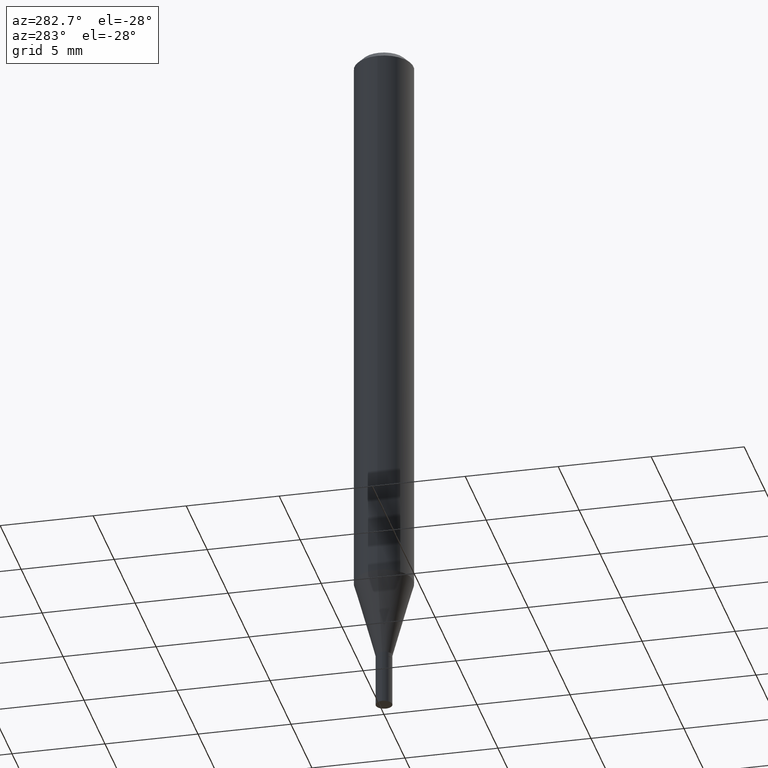
[diagram: clean part render]
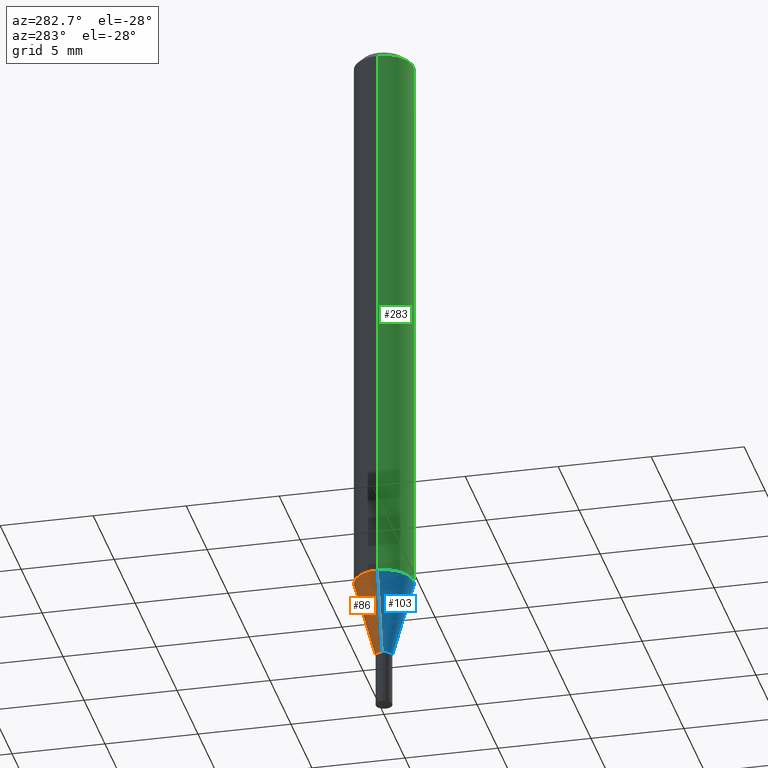
[diagram: same view with three faces highlighted in distinct colors, each labeled with its STEP entity id]
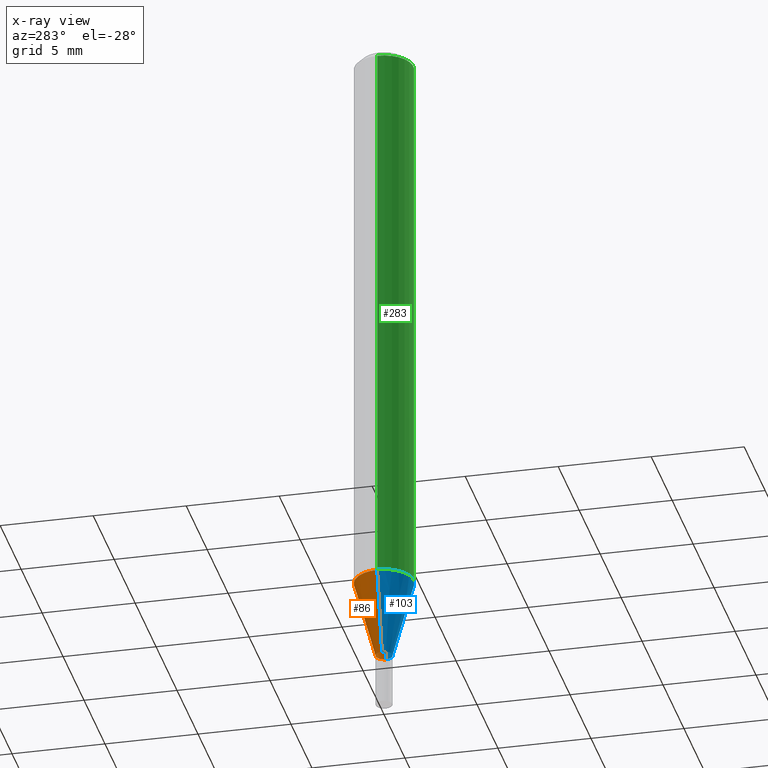
[diagram: x-ray of the same camera — body ghosted, the three highlighted faces saturated]
A machine part, auxiliary view with three faces highlighted in distinct colors.
The next image is the same camera in x-ray (body ghosted, the three faces saturated) — at least one of them is partly hidden behind the body in this view.
Their STEP definitions:

[orange] entity #86 — the highlighted conical surface has half-angle 15 deg.
#17 = LINE ( 'NONE', #413, #149 ) ;
#18 = ORIENTED_EDGE ( 'NONE', *, *, #47, .F. ) ;
#31 = AXIS2_PLACEMENT_3D ( 'NONE', #456, #276, #279 ) ;
#47 = EDGE_CURVE ( 'NONE', #292, #209, #17, .T. ) ;
#67 = EDGE_CURVE ( 'NONE', #317, #382, #308, .T. ) ;
#80 = EDGE_CURVE ( 'NONE', #292, #317, #97, .T. ) ;
#86 = ADVANCED_FACE ( 'NONE', ( #225 ), #362, .T. ) ;
#93 = DIRECTION ( 'NONE',  ( -0.2588190451025216277, 5.211531920934551831E-15, 0.9659258262890679791 ) ) ;
#97 = CIRCLE ( 'NONE', #122, 0.01749999999999992534 ) ;
#105 = CARTESIAN_POINT ( 'NONE',  ( 0.01749999999999992534, -4.957903501157266562E-15, -1.385000000000000009 ) ) ;
#111 = ORIENTED_EDGE ( 'NONE', *, *, #80, .T. ) ;
#122 = AXIS2_PLACEMENT_3D ( 'NONE', #446, #156, #373 ) ;
#127 = CARTESIAN_POINT ( 'NONE',  ( 3.386974296566414366E-29, -4.835701654297756579E-15, -1.385000000000000009 ) ) ;
#149 = VECTOR ( 'NONE', #228, 39.37007874015748143 ) ;
#156 = DIRECTION ( 'NONE',  ( -2.445468806185136597E-29, 3.491481338843145583E-15, 1.000000000000000000 ) ) ;
#165 = CARTESIAN_POINT ( 'NONE',  ( -0.01749999999999992534, -4.711356675539740119E-15, -1.385000000000000009 ) ) ;
#176 = VECTOR ( 'NONE', #93, 39.37007874015748143 ) ;
#184 = CARTESIAN_POINT ( 'NONE',  ( -0.06249999999999999306, -3.805245085686840042E-15, -1.217057713659400964 ) ) ;
#209 = VERTEX_POINT ( 'NONE', #346 ) ;
#225 = FACE_OUTER_BOUND ( 'NONE', #278, .T. ) ;
#228 = DIRECTION ( 'NONE',  ( 0.2588190451025216277, 1.565188264969619995E-15, 0.9659258262890679791 ) ) ;
#261 = EDGE_CURVE ( 'NONE', #209, #382, #323, .T. ) ;
#276 = DIRECTION ( 'NONE',  ( -2.445468806185136597E-29, 3.491481338843145583E-15, 1.000000000000000000 ) ) ;
#278 = EDGE_LOOP ( 'NONE', ( #111, #347, #407, #18 ) ) ;
#279 = DIRECTION ( 'NONE',  ( 1.000000000000000000, -6.982962677686270655E-15, 0.000000000000000000 ) ) ;
#292 = VERTEX_POINT ( 'NONE', #105 ) ;
#308 = LINE ( 'NONE', #165, #176 ) ;
#317 = VERTEX_POINT ( 'NONE', #453 ) ;
#323 = CIRCLE ( 'NONE', #31, 0.06250000000000000000 ) ;
#346 = CARTESIAN_POINT ( 'NONE',  ( 0.06249999999999999306, -4.685769462892295117E-15, -1.217057713659400964 ) ) ;
#347 = ORIENTED_EDGE ( 'NONE', *, *, #67, .T. ) ;
#362 = CONICAL_SURFACE ( 'NONE', #393, 0.01749999999999992534, 0.2617993877991502960 ) ;
#367 = DIRECTION ( 'NONE',  ( 1.000000000000000000, -6.982962677686279332E-15, 0.000000000000000000 ) ) ;
#373 = DIRECTION ( 'NONE',  ( 1.000000000000000000, -6.982962677686279332E-15, 0.000000000000000000 ) ) ;
#382 = VERTEX_POINT ( 'NONE', #184 ) ;
#393 = AXIS2_PLACEMENT_3D ( 'NONE', #127, #403, #367 ) ;
#403 = DIRECTION ( 'NONE',  ( -2.445468806185136597E-29, 3.491481338843145583E-15, 1.000000000000000000 ) ) ;
#407 = ORIENTED_EDGE ( 'NONE', *, *, #261, .F. ) ;
#413 = CARTESIAN_POINT ( 'NONE',  ( 0.01749999999999992534, -4.957903501157266562E-15, -1.385000000000000009 ) ) ;
#446 = CARTESIAN_POINT ( 'NONE',  ( 3.386974296566414366E-29, -4.835701654297756579E-15, -1.385000000000000009 ) ) ;
#453 = CARTESIAN_POINT ( 'NONE',  ( -0.01749999999999992534, -4.258300880613290081E-15, -1.385000000000000009 ) ) ;
#456 = CARTESIAN_POINT ( 'NONE',  ( 2.976276674081067124E-29, -4.249334295536902658E-15, -1.217057713659400964 ) ) ;

[blue] entity #103 — the highlighted conical surface has half-angle 15 deg.
#17 = LINE ( 'NONE', #413, #149 ) ;
#42 = CARTESIAN_POINT ( 'NONE',  ( 3.386974296566414366E-29, -4.835701654297756579E-15, -1.385000000000000009 ) ) ;
#44 = CONICAL_SURFACE ( 'NONE', #268, 0.01749999999999992534, 0.2617993877991502960 ) ;
#47 = EDGE_CURVE ( 'NONE', #292, #209, #17, .T. ) ;
#53 = FACE_OUTER_BOUND ( 'NONE', #419, .T. ) ;
#67 = EDGE_CURVE ( 'NONE', #317, #382, #308, .T. ) ;
#70 = DIRECTION ( 'NONE',  ( -2.445468806185136597E-29, 3.491481338843145583E-15, 1.000000000000000000 ) ) ;
#93 = DIRECTION ( 'NONE',  ( -0.2588190451025216277, 5.211531920934551831E-15, 0.9659258262890679791 ) ) ;
#101 = DIRECTION ( 'NONE',  ( 1.000000000000000000, -6.982962677686279332E-15, 0.000000000000000000 ) ) ;
#103 = ADVANCED_FACE ( 'NONE', ( #53 ), #44, .T. ) ;
#105 = CARTESIAN_POINT ( 'NONE',  ( 0.01749999999999992534, -4.957903501157266562E-15, -1.385000000000000009 ) ) ;
#132 = ORIENTED_EDGE ( 'NONE', *, *, #252, .F. ) ;
#142 = DIRECTION ( 'NONE',  ( 1.000000000000000000, -6.982962677686270655E-15, 0.000000000000000000 ) ) ;
#149 = VECTOR ( 'NONE', #228, 39.37007874015748143 ) ;
#165 = CARTESIAN_POINT ( 'NONE',  ( -0.01749999999999992534, -4.711356675539740119E-15, -1.385000000000000009 ) ) ;
#176 = VECTOR ( 'NONE', #93, 39.37007874015748143 ) ;
#184 = CARTESIAN_POINT ( 'NONE',  ( -0.06249999999999999306, -3.805245085686840042E-15, -1.217057713659400964 ) ) ;
#199 = AXIS2_PLACEMENT_3D ( 'NONE', #321, #385, #142 ) ;
#209 = VERTEX_POINT ( 'NONE', #346 ) ;
#228 = DIRECTION ( 'NONE',  ( 0.2588190451025216277, 1.565188264969619995E-15, 0.9659258262890679791 ) ) ;
#230 = DIRECTION ( 'NONE',  ( 1.000000000000000000, -6.982962677686279332E-15, 0.000000000000000000 ) ) ;
#252 = EDGE_CURVE ( 'NONE', #382, #209, #400, .T. ) ;
#254 = EDGE_CURVE ( 'NONE', #317, #292, #464, .T. ) ;
#256 = AXIS2_PLACEMENT_3D ( 'NONE', #381, #70, #101 ) ;
#268 = AXIS2_PLACEMENT_3D ( 'NONE', #42, #299, #230 ) ;
#292 = VERTEX_POINT ( 'NONE', #105 ) ;
#299 = DIRECTION ( 'NONE',  ( -2.445468806185136597E-29, 3.491481338843145583E-15, 1.000000000000000000 ) ) ;
#308 = LINE ( 'NONE', #165, #176 ) ;
#317 = VERTEX_POINT ( 'NONE', #453 ) ;
#321 = CARTESIAN_POINT ( 'NONE',  ( 2.976276674081067124E-29, -4.249334295536902658E-15, -1.217057713659400964 ) ) ;
#346 = CARTESIAN_POINT ( 'NONE',  ( 0.06249999999999999306, -4.685769462892295117E-15, -1.217057713659400964 ) ) ;
#375 = ORIENTED_EDGE ( 'NONE', *, *, #254, .T. ) ;
#381 = CARTESIAN_POINT ( 'NONE',  ( 3.386974296566414366E-29, -4.835701654297756579E-15, -1.385000000000000009 ) ) ;
#382 = VERTEX_POINT ( 'NONE', #184 ) ;
#385 = DIRECTION ( 'NONE',  ( -2.445468806185136597E-29, 3.491481338843145583E-15, 1.000000000000000000 ) ) ;
#400 = CIRCLE ( 'NONE', #199, 0.06250000000000000000 ) ;
#413 = CARTESIAN_POINT ( 'NONE',  ( 0.01749999999999992534, -4.957903501157266562E-15, -1.385000000000000009 ) ) ;
#419 = EDGE_LOOP ( 'NONE', ( #459, #375, #457, #132 ) ) ;
#453 = CARTESIAN_POINT ( 'NONE',  ( -0.01749999999999992534, -4.258300880613290081E-15, -1.385000000000000009 ) ) ;
#457 = ORIENTED_EDGE ( 'NONE', *, *, #47, .T. ) ;
#459 = ORIENTED_EDGE ( 'NONE', *, *, #67, .F. ) ;
#464 = CIRCLE ( 'NONE', #256, 0.01749999999999992534 ) ;

[green] entity #283 — the highlighted cylindrical surface (edge-blend (fillet) strip) has radius 1.5875 mm, axis along (-0, 0, 1).
#10 = EDGE_CURVE ( 'NONE', #181, #458, #136, .T. ) ;
#38 = AXIS2_PLACEMENT_3D ( 'NONE', #461, #141, #422 ) ;
#56 = CYLINDRICAL_SURFACE ( 'NONE', #38, 0.06250000000000000000 ) ;
#63 = EDGE_LOOP ( 'NONE', ( #187, #66, #71, #436 ) ) ;
#66 = ORIENTED_EDGE ( 'NONE', *, *, #252, .T. ) ;
#69 = EDGE_CURVE ( 'NONE', #382, #181, #189, .T. ) ;
#71 = ORIENTED_EDGE ( 'NONE', *, *, #450, .T. ) ;
#75 = DIRECTION ( 'NONE',  ( -2.445468806185136877E-29, 3.491481338843145188E-15, 1.000000000000000000 ) ) ;
#89 = DIRECTION ( 'NONE',  ( -2.445468806185136597E-29, 3.491481338843145583E-15, 1.000000000000000000 ) ) ;
#95 = CARTESIAN_POINT ( 'NONE',  ( -0.06250000000000000000, 4.440892098500626162E-16, -3.074334431409316114E-30 ) ) ;
#99 = VECTOR ( 'NONE', #75, 39.37007874015748143 ) ;
#107 = AXIS2_PLACEMENT_3D ( 'NONE', #369, #89, #263 ) ;
#115 = CARTESIAN_POINT ( 'NONE',  ( 0.06250000000000000000, -4.364351673553916694E-16, 3.047610484872459871E-30 ) ) ;
#136 = CIRCLE ( 'NONE', #107, 0.06250000000000000000 ) ;
#141 = DIRECTION ( 'NONE',  ( -2.445468806185136597E-29, 3.491481338843145583E-15, 1.000000000000000000 ) ) ;
#142 = DIRECTION ( 'NONE',  ( 1.000000000000000000, -6.982962677686270655E-15, 0.000000000000000000 ) ) ;
#181 = VERTEX_POINT ( 'NONE', #210 ) ;
#184 = CARTESIAN_POINT ( 'NONE',  ( -0.06249999999999999306, -3.805245085686840042E-15, -1.217057713659400964 ) ) ;
#187 = ORIENTED_EDGE ( 'NONE', *, *, #69, .F. ) ;
#189 = LINE ( 'NONE', #95, #284 ) ;
#199 = AXIS2_PLACEMENT_3D ( 'NONE', #321, #385, #142 ) ;
#209 = VERTEX_POINT ( 'NONE', #346 ) ;
#210 = CARTESIAN_POINT ( 'NONE',  ( -0.06250000000000000000, -1.706764047959712450E-15, -0.01499999999999999944 ) ) ;
#252 = EDGE_CURVE ( 'NONE', #382, #209, #400, .T. ) ;
#263 = DIRECTION ( 'NONE',  ( 1.000000000000000000, -6.982962677686266711E-15, 0.000000000000000000 ) ) ;
#283 = ADVANCED_FACE ( 'NONE', ( #312 ), #56, .T. ) ;
#284 = VECTOR ( 'NONE', #405, 39.37007874015748143 ) ;
#312 = FACE_OUTER_BOUND ( 'NONE', #63, .T. ) ;
#321 = CARTESIAN_POINT ( 'NONE',  ( 2.976276674081067124E-29, -4.249334295536902658E-15, -1.217057713659400964 ) ) ;
#346 = CARTESIAN_POINT ( 'NONE',  ( 0.06249999999999999306, -4.685769462892295117E-15, -1.217057713659400964 ) ) ;
#359 = CARTESIAN_POINT ( 'NONE',  ( 0.06250000000000000000, -4.888073874380388472E-16, -0.01499999999999999944 ) ) ;
#369 = CARTESIAN_POINT ( 'NONE',  ( 3.668203209277705088E-31, -5.237222008264718399E-17, -0.01499999999999999944 ) ) ;
#382 = VERTEX_POINT ( 'NONE', #184 ) ;
#385 = DIRECTION ( 'NONE',  ( -2.445468806185136597E-29, 3.491481338843145583E-15, 1.000000000000000000 ) ) ;
#396 = LINE ( 'NONE', #115, #99 ) ;
#400 = CIRCLE ( 'NONE', #199, 0.06250000000000000000 ) ;
#405 = DIRECTION ( 'NONE',  ( -2.445468806185136877E-29, 3.491481338843145188E-15, 1.000000000000000000 ) ) ;
#422 = DIRECTION ( 'NONE',  ( 1.000000000000000000, -6.982962677686266711E-15, 4.876176775795935793E-29 ) ) ;
#436 = ORIENTED_EDGE ( 'NONE', *, *, #10, .F. ) ;
#450 = EDGE_CURVE ( 'NONE', #209, #458, #396, .T. ) ;
#458 = VERTEX_POINT ( 'NONE', #359 ) ;
#461 = CARTESIAN_POINT ( 'NONE',  ( 0.000000000000000000, 0.000000000000000000, 0.000000000000000000 ) ) ;